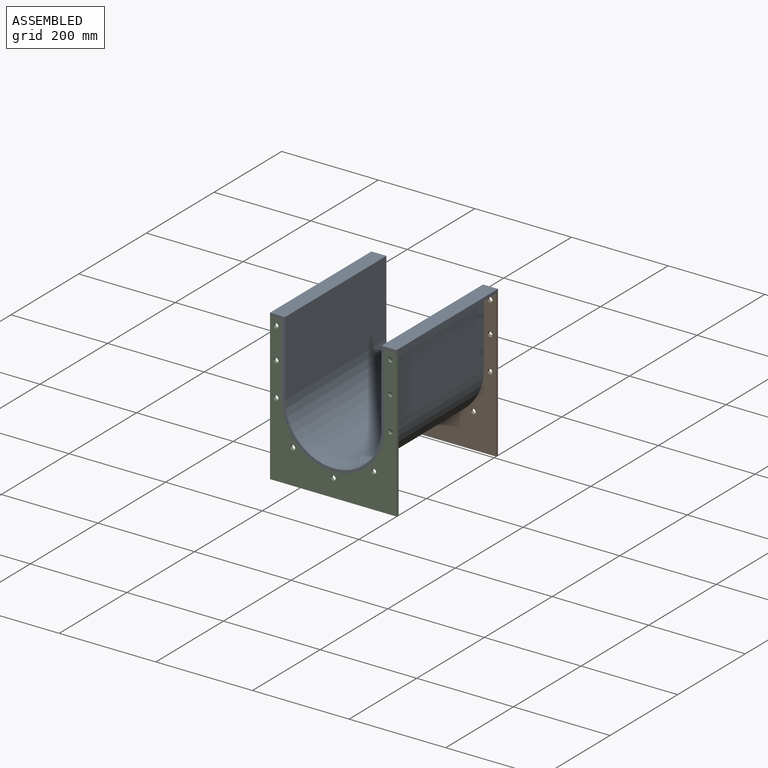
[diagram: assembled view]
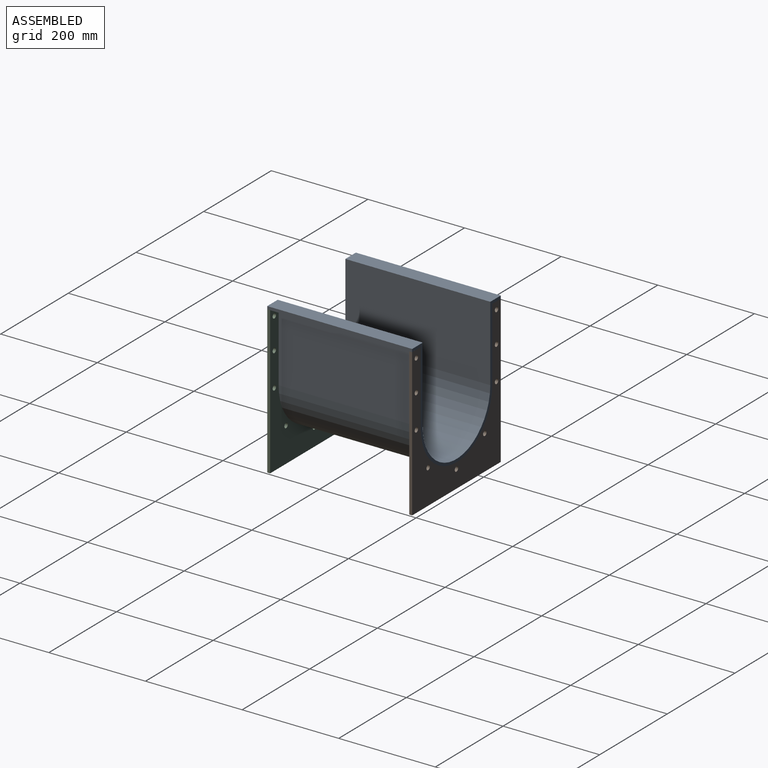
[diagram: assembled view, second angle]
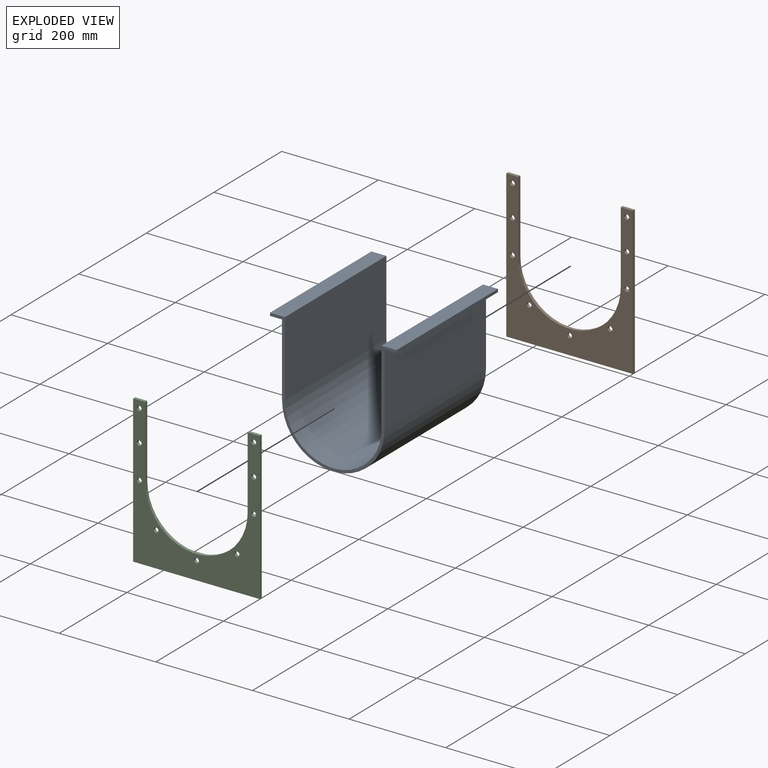
[diagram: exploded view]
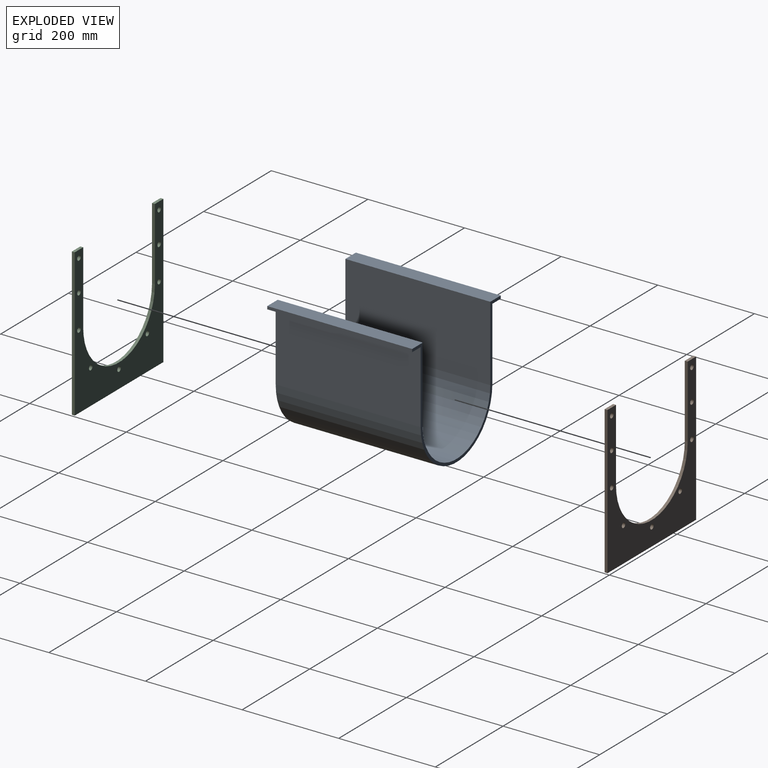
[diagram: exploded view, second angle]
ASSEMBLY  parts=3 mates=2
PART A: 14 faces, bbox 262x300x262 mm
  f0: plane 300x6mm, normal (-1,0,0), area 1800mm2, adj f1,f11,f12,f13
  f1: plane 300x25mm, normal (0,0,-1), area 7500mm2, adj f0,f2,f12,f13
  f2: plane 300x150mm, normal (-1,0,0), area 45000mm2, adj f1,f3,f12,f13
  f3: cylinder r=106mm len=300mm, axis (0,1,0), area 99902.6mm2, adj f2,f4,f12,f13
  f4: plane 300x150mm, normal (1,0,0), area 45000mm2, adj f3,f5,f12,f13
  f5: plane 300x25mm, normal (0,0,-1), area 7500mm2, adj f4,f6,f12,f13
  f6: plane 300x6mm, normal (1,0,0), area 1800mm2, adj f5,f7,f12,f13
  f7: plane 300x31mm, normal (0,0,1), area 9300mm2, adj f6,f8,f12,f13
  f8: plane 300x156mm, normal (-1,0,0), area 46800mm2, adj f7,f9,f12,f13
  f9: cylinder r=100mm len=300mm, axis (0,1,0), area 94247.8mm2, adj f8,f10,f12,f13
  f10: plane 300x156mm, normal (1,0,0), area 46800mm2, adj f9,f11,f12,f13
  f11: plane 300x31mm, normal (0,0,1), area 9300mm2, adj f0,f10,f12,f13
  f12: plane 262x262mm, normal (0,-1,0), area 4113.5mm2, adj f0,f1,f2,f3,f4,f5,f6,f7
  f13: plane 262x262mm, normal (0,1,0), area 4113.5mm2, adj f0,f1,f2,f3,f4,f5,f6,f7
PART B: 19 faces, bbox 262x6x305.3 mm
  f0: plane 305.34x6mm, normal (-1,0,0), area 1832mm2, adj f1,f15,f17,f18
  f1: plane 262x6mm, normal (0,0,-1), area 1572mm2, adj f0,f2,f17,f18
  f2: plane 305.34x6mm, normal (1,0,0), area 1832mm2, adj f1,f3,f17,f18
  f3: plane 25x6mm, normal (0,0,1), area 150mm2, adj f2,f4,f17,f18
  f4: plane 150x6mm, normal (-1,0,0), area 900mm2, adj f3,f5,f17,f18
  f5: cylinder r=106mm len=212mm, axis (0,1,0), area 1998.1mm2, adj f4,f6,f17,f18
  f6: plane 150x6mm, normal (1,0,0), area 900mm2, adj f5,f15,f17,f18
  f7: cylinder r=5mm len=10mm, axis (0,1,0), area 188.5mm2, adj f17,f18
  f8: cylinder r=5mm len=10mm, axis (0,1,0), area 188.5mm2, adj f17,f18
  f9: cylinder r=5mm len=10mm, axis (0,1,0), area 188.5mm2, adj f17,f18
  f10: cylinder r=5mm len=10mm, axis (0,1,0), area 188.5mm2, adj f17,f18
  f11: cylinder r=5mm len=10mm, axis (0,1,0), area 188.5mm2, adj f17,f18
  f12: cylinder r=5mm len=10mm, axis (0,1,0), area 188.5mm2, adj f17,f18
  f13: cylinder r=5mm len=10mm, axis (0,1,0), area 188.5mm2, adj f17,f18
  f14: cylinder r=5mm len=10mm, axis (0,1,0), area 188.5mm2, adj f17,f18
  f15: plane 25x6mm, normal (0,0,1), area 150mm2, adj f0,f6,f17,f18
  f16: cylinder r=5mm len=10mm, axis (0,1,0), area 188.5mm2, adj f17,f18
  f17: plane 305.34x262mm, normal (0,-1,0), area 29843.4mm2, adj f0,f1,f2,f3,f4,f5,f6,f7
  f18: plane 305.34x262mm, normal (0,1,0), area 29843.4mm2, adj f0,f1,f2,f3,f4,f5,f6,f7
PART C: same geometry as B
PLACE A rot(axis=(0,-1,0),0deg) t=(78.27,-201.64,-369.4)mm
PLACE B t=(78.27,-201.64,-369.4)mm
PLACE C rot(axis=(0,1,0),0deg) t=(78.27,-495.65,-369.4)mm
MATE parallel B.f5 <-> A.f3  axis (0,1,0) through (78.27,-201.64,-369.4)mm
MATE parallel C.f5 <-> A.f3  axis (0,-1,0) through (78.27,-501.65,-369.4)mm
